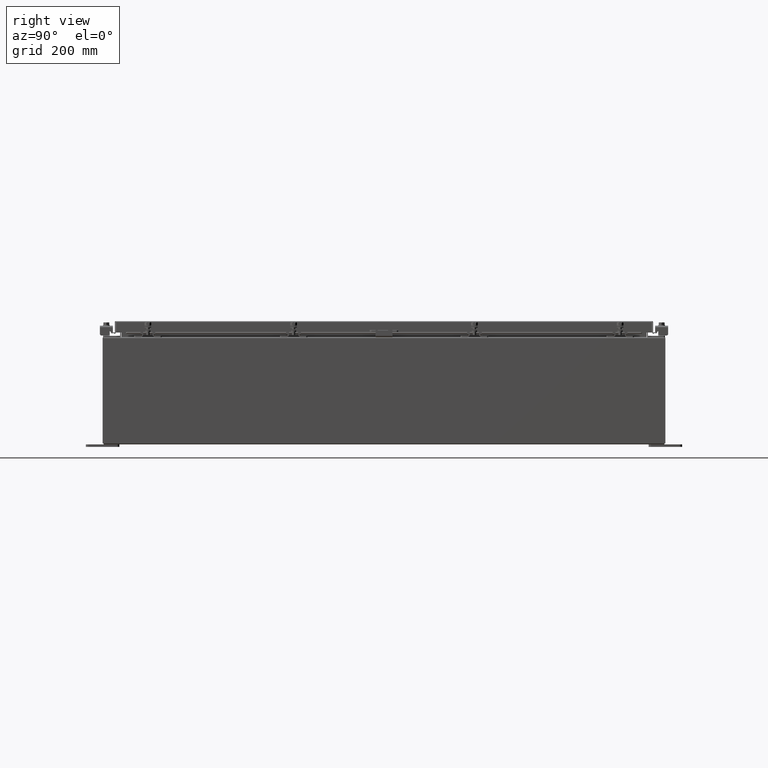
[diagram: clean part render]
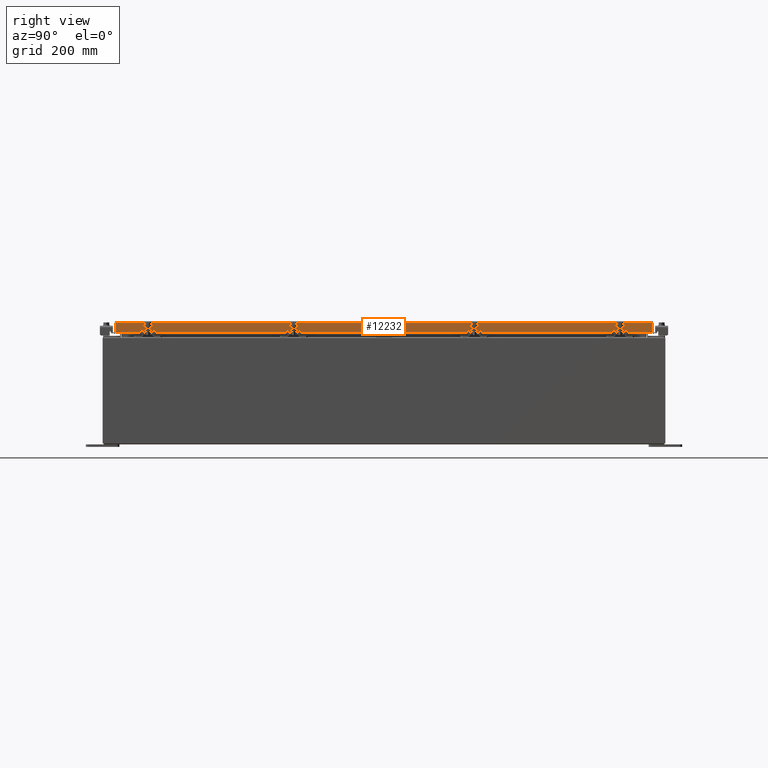
[diagram: same view with one face highlighted and labeled with its STEP entity id]
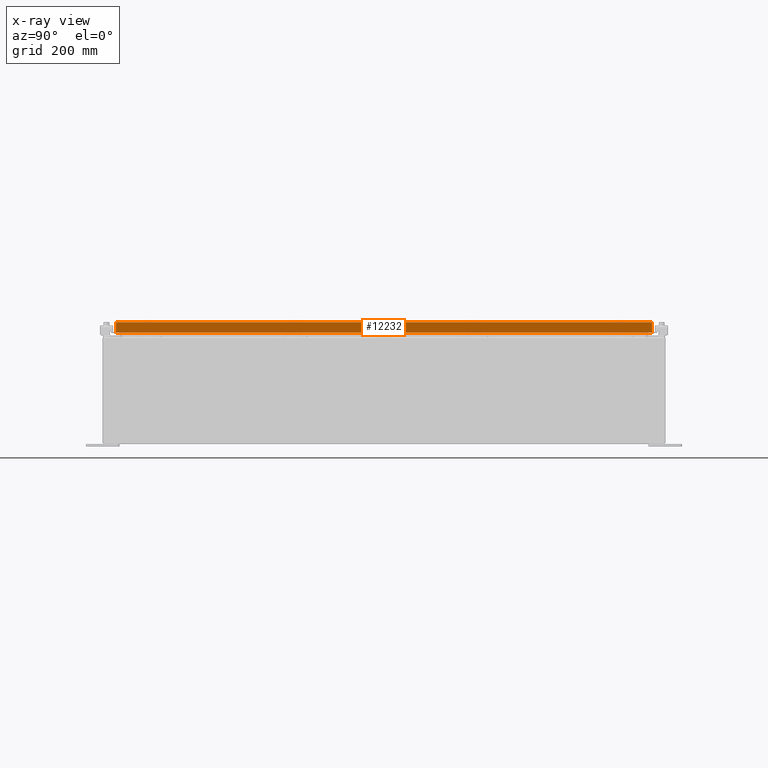
[diagram: x-ray of the same camera — body ghosted, the highlighted face saturated]
A machine part, right view. The second image highlights one B-rep face of the part: STEP entity #12232.
The next image is the same camera in x-ray: the body ghosted, the highlighted face saturated — about 0% of this face is hidden behind the body in this view.
In plain terms, the highlighted planar face has unit normal (1, 0, 0).
Its self-contained STEP definition (entity closure, byte-faithful):
#2256 = DIRECTION ( 'NONE',  ( 0.0000000000000000000, -1.000000000000000000, 0.0000000000000000000 ) ) ;
#3383 = CARTESIAN_POINT ( 'NONE',  ( 14.07800000000000500, 20.00515786437627200, -0.8499999999999996400 ) ) ;
#4350 = FACE_OUTER_BOUND ( 'NONE', #10751, .T. ) ;
#4666 = CARTESIAN_POINT ( 'NONE',  ( 14.07800000000000300, -20.00515786437628000, -0.08770000000000007000 ) ) ;
#5073 = VECTOR ( 'NONE', #25896, 39.37007874015748100 ) ;
#6025 = VERTEX_POINT ( 'NONE', #27279 ) ;
#7611 = VECTOR ( 'NONE', #15359, 39.37007874015748100 ) ;
#9421 = LINE ( 'NONE', #29532, #14575 ) ;
#9535 = CARTESIAN_POINT ( 'NONE',  ( 14.07800000000000500, -20.09400000000000800, -0.8499999999999996400 ) ) ;
#10263 = VERTEX_POINT ( 'NONE', #4666 ) ;
#10314 = ORIENTED_EDGE ( 'NONE', *, *, #26792, .F. ) ;
#10751 = EDGE_LOOP ( 'NONE', ( #13013, #10314, #29018, #23670, #36834, #40056 ) ) ;
#11654 = CARTESIAN_POINT ( 'NONE',  ( 14.07799999999999600, 19.25515786437627200, -0.8500000000000018700 ) ) ;
#12232 = ADVANCED_FACE ( 'NONE', ( #4350 ), #12254, .T. ) ;
#12254 = PLANE ( 'NONE',  #34044 ) ;
#13013 = ORIENTED_EDGE ( 'NONE', *, *, #21132, .F. ) ;
#13594 = VECTOR ( 'NONE', #17047, 39.37007874015748100 ) ;
#13786 = LINE ( 'NONE', #9535, #38601 ) ;
#14565 = VERTEX_POINT ( 'NONE', #15326 ) ;
#14575 = VECTOR ( 'NONE', #40501, 39.37007874015748100 ) ;
#14859 = LINE ( 'NONE', #37060, #5073 ) ;
#15326 = CARTESIAN_POINT ( 'NONE',  ( 14.07800000000000500, -20.00515786437627200, -0.8499999999999996400 ) ) ;
#15359 = DIRECTION ( 'NONE',  ( 0.0000000000000000000, -1.000000000000000000, 0.0000000000000000000 ) ) ;
#17047 = DIRECTION ( 'NONE',  ( -2.818880942772360100E-015, -6.982962677686265900E-015, 1.000000000000000000 ) ) ;
#19637 = CARTESIAN_POINT ( 'NONE',  ( 14.07800000000000300, 0.0000000000000000000, 3.994501956836086900E-014 ) ) ;
#21132 = EDGE_CURVE ( 'NONE', #14565, #10263, #21694, .T. ) ;
#21694 = LINE ( 'NONE', #40885, #40171 ) ;
#23336 = DIRECTION ( 'NONE',  ( 2.818880942772360100E-015, 0.0000000000000000000, -1.000000000000000000 ) ) ;
#23670 = ORIENTED_EDGE ( 'NONE', *, *, #29050, .F. ) ;
#23694 = CARTESIAN_POINT ( 'NONE',  ( 14.07799999999999600, 19.25515786437627200, -0.8500000000000018700 ) ) ;
#24982 = EDGE_CURVE ( 'NONE', #30760, #6025, #27219, .T. ) ;
#25896 = DIRECTION ( 'NONE',  ( 0.0000000000000000000, -1.000000000000000000, 0.0000000000000000000 ) ) ;
#26792 = EDGE_CURVE ( 'NONE', #6025, #14565, #9421, .T. ) ;
#27219 = LINE ( 'NONE', #11654, #7611 ) ;
#27279 = CARTESIAN_POINT ( 'NONE',  ( 14.07799999999999600, -19.25515786437627600, -0.8500000000000018700 ) ) ;
#28433 = VERTEX_POINT ( 'NONE', #42438 ) ;
#29018 = ORIENTED_EDGE ( 'NONE', *, *, #24982, .F. ) ;
#29050 = EDGE_CURVE ( 'NONE', #39148, #30760, #13786, .T. ) ;
#29532 = CARTESIAN_POINT ( 'NONE',  ( 14.07800000000000500, -20.09400000000000800, -0.8499999999999996400 ) ) ;
#30760 = VERTEX_POINT ( 'NONE', #23694 ) ;
#32794 = EDGE_CURVE ( 'NONE', #39148, #28433, #33205, .T. ) ;
#33205 = LINE ( 'NONE', #42838, #13594 ) ;
#34044 = AXIS2_PLACEMENT_3D ( 'NONE', #19637, #45409, #23336 ) ;
#36834 = ORIENTED_EDGE ( 'NONE', *, *, #32794, .T. ) ;
#37060 = CARTESIAN_POINT ( 'NONE',  ( 14.07800000000000300, 0.0000000000000000000, -0.08770000000000007000 ) ) ;
#37191 = DIRECTION ( 'NONE',  ( -2.818880942772360100E-015, -6.982962677686265900E-015, 1.000000000000000000 ) ) ;
#38601 = VECTOR ( 'NONE', #2256, 39.37007874015748100 ) ;
#39148 = VERTEX_POINT ( 'NONE', #3383 ) ;
#40056 = ORIENTED_EDGE ( 'NONE', *, *, #40835, .T. ) ;
#40171 = VECTOR ( 'NONE', #37191, 39.37007874015748100 ) ;
#40501 = DIRECTION ( 'NONE',  ( 0.0000000000000000000, -1.000000000000000000, 0.0000000000000000000 ) ) ;
#40835 = EDGE_CURVE ( 'NONE', #28433, #10263, #14859, .T. ) ;
#40885 = CARTESIAN_POINT ( 'NONE',  ( 14.07800000000000300, -20.00515786437628000, -0.07469999999999978000 ) ) ;
#42438 = CARTESIAN_POINT ( 'NONE',  ( 14.07800000000000300, 20.00515786437626900, -0.08770000000000007000 ) ) ;
#42838 = CARTESIAN_POINT ( 'NONE',  ( 14.07800000000000300, 20.00515786437626900, 1.796402902965222800E-013 ) ) ;
#45409 = DIRECTION ( 'NONE',  ( 1.000000000000000000, 0.0000000000000000000, 2.818880942772360100E-015 ) ) ;